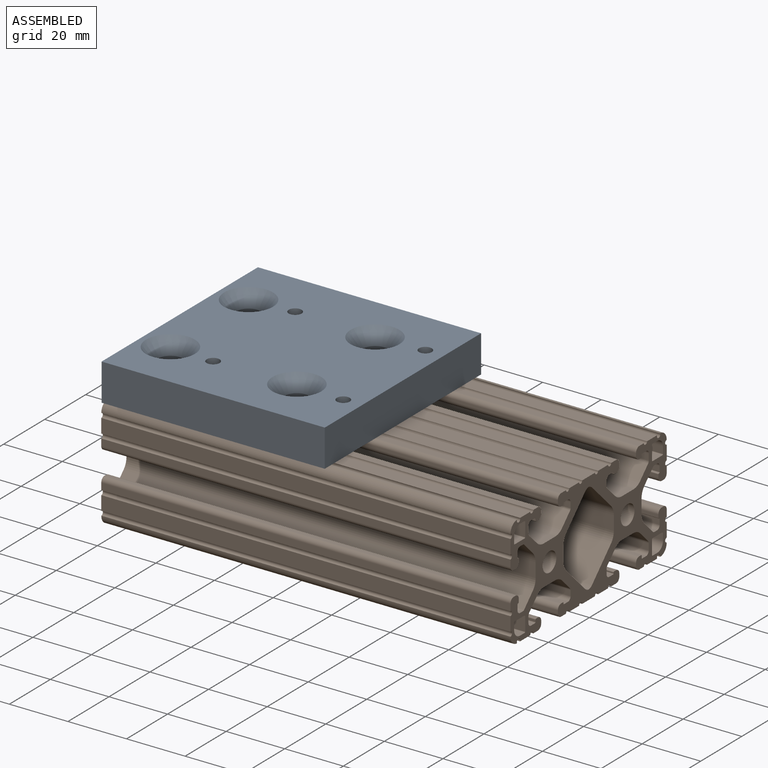
[diagram: assembled view]
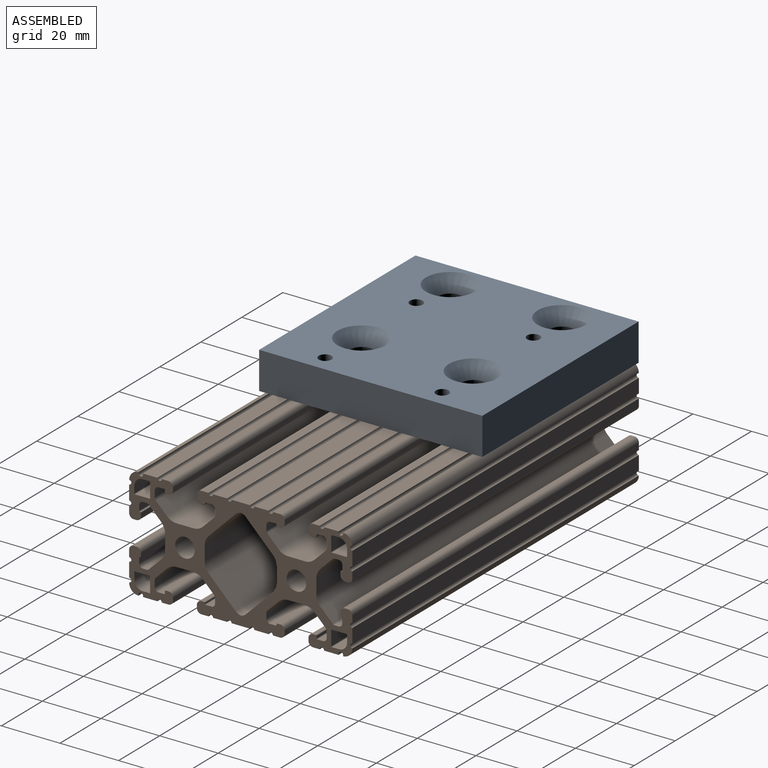
[diagram: assembled view, second angle]
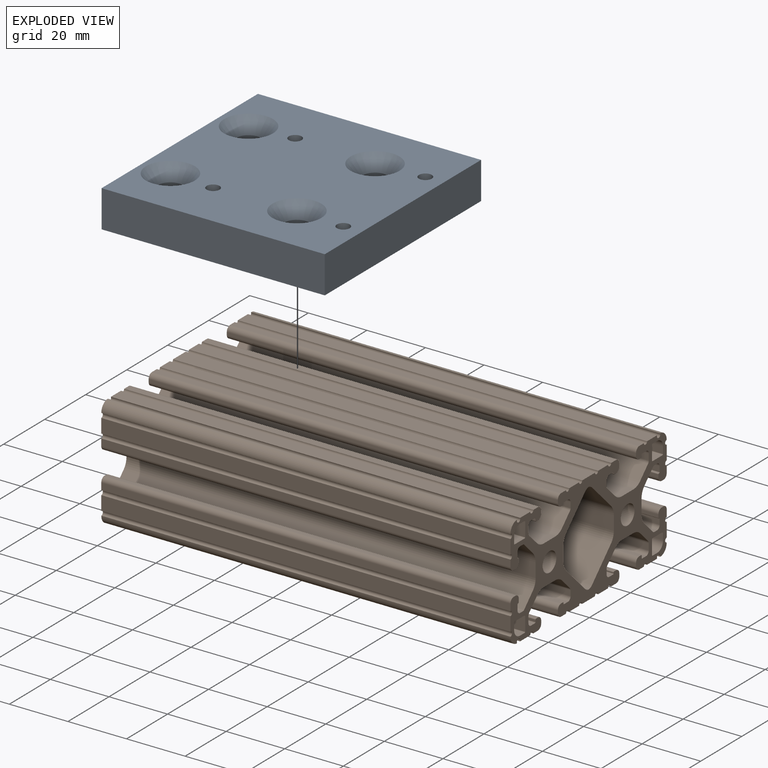
[diagram: exploded view]
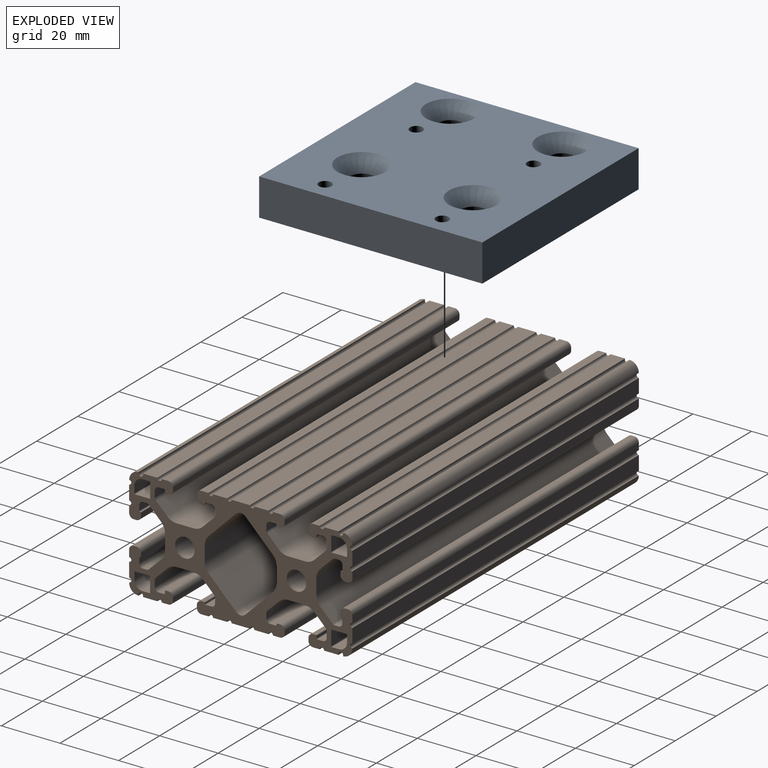
[diagram: exploded view, second angle]
ASSEMBLY  parts=2 mates=2
PART A: 26 faces, bbox 76.2x76.2x12.7 mm
  f0: plane 76.2x12.7mm, normal (1,0,0), area 967.7mm2, adj f1,f3,f4,f5
  f1: plane 76.2x12.7mm, normal (0,1,0), area 967.7mm2, adj f0,f2,f4,f5
  f2: plane 76.2x12.7mm, normal (-1,0,0), area 967.7mm2, adj f1,f3,f4,f5
  f3: plane 76.2x12.7mm, normal (0,-1,0), area 967.7mm2, adj f0,f2,f4,f5
  f4: plane 76.2x76.2mm, normal (0,0,1), area 4873.4mm2, adj f0,f1,f2,f3,f7,f9,f11,f13
  f5: plane 76.2x76.2mm, normal (0,0,-1), area 5369.2mm2, adj f0,f1,f2,f3,f6,f8,f10,f12
  f6: cylinder r=4.22mm len=8.43mm, axis (0,0,1), area 211.1mm2, adj f5,f7
  f7: cone r=4.22mm half-angle=41deg, axis (0,0,1), area 247.2mm2, adj f4,f6
  f8: cylinder r=4.22mm len=8.43mm, axis (0,0,1), area 211.1mm2, adj f5,f9
  f9: cone r=4.22mm half-angle=41deg, axis (0,0,1), area 247.2mm2, adj f4,f8
  f10: cylinder r=4.22mm len=8.43mm, axis (0,0,1), area 211.1mm2, adj f5,f11
  f11: cone r=4.22mm half-angle=41deg, axis (0,0,1), area 247.2mm2, adj f4,f10
  f12: cylinder r=4.22mm len=8.43mm, axis (0,0,1), area 211.1mm2, adj f5,f13
  f13: cone r=4.22mm half-angle=41deg, axis (0,0,1), area 247.2mm2, adj f4,f12
  f14: cylinder r=2.2mm len=6.35mm, axis (0,0,-1), area 87.8mm2, adj f4,f15
  f15: plane 8.25x8.25mm, normal (0,0,-1), area 38.3mm2, adj f14,f16
  f16: cylinder r=4.12mm len=8.25mm, axis (0,0,-1), area 164.6mm2, adj f5,f15
  f17: cylinder r=2.2mm len=6.35mm, axis (0,0,-1), area 87.8mm2, adj f4,f18
  f18: plane 8.25x8.25mm, normal (0,0,-1), area 38.3mm2, adj f17,f19
  f19: cylinder r=4.12mm len=8.25mm, axis (0,0,-1), area 164.6mm2, adj f5,f18
  f20: cylinder r=2.2mm len=6.35mm, axis (0,0,-1), area 87.8mm2, adj f4,f21
  f21: plane 8.25x8.25mm, normal (0,0,-1), area 38.3mm2, adj f20,f22
  f22: cylinder r=4.12mm len=8.25mm, axis (0,0,-1), area 164.6mm2, adj f5,f21
  f23: cylinder r=2.2mm len=6.35mm, axis (0,0,-1), area 87.8mm2, adj f4,f24
  f24: plane 8.25x8.25mm, normal (0,0,-1), area 38.3mm2, adj f23,f25
  f25: cylinder r=4.12mm len=8.25mm, axis (0,0,-1), area 164.6mm2, adj f5,f24
PART B: 266 faces, bbox 139.7x76.2x38.1 mm
  f0: cylinder r=0.76mm len=139.7mm, axis (-1,0,0), area 334.4mm2, adj f1,f263,f264,f265
  f1: plane 139.7x6.25mm, normal (0,0,1), area 872.8mm2, adj f0,f2,f264,f265
  f2: cylinder r=0.76mm len=139.7mm, axis (-1,0,0), area 334.4mm2, adj f1,f3,f264,f265
  f3: plane 139.7x4.83mm, normal (0,0,1), area 674.3mm2, adj f2,f4,f264,f265
  f4: cylinder r=0.76mm len=139.7mm, axis (-1,0,0), area 334.4mm2, adj f3,f5,f264,f265
  f5: plane 139.7x2.41mm, normal (0,0,1), area 337.1mm2, adj f4,f6,f264,f265
  f6: cylinder r=1.57mm len=139.7mm, axis (-1,0,0), area 345.6mm2, adj f5,f7,f264,f265
  f7: plane 139.7x0.91mm, normal (0,-1,0), area 127.7mm2, adj f6,f8,f264,f265
  f8: cylinder r=1.57mm len=139.7mm, axis (-1,0,0), area 345.6mm2, adj f7,f9,f264,f265
  f9: plane 139.7x0.94mm, normal (0,0,-1), area 131.4mm2, adj f8,f10,f264,f265
  f10: cylinder r=0.25mm len=139.7mm, axis (-1,0,0), area 55.7mm2, adj f9,f11,f264,f265
  f11: plane 139.7x0.26mm, normal (0,1,0), area 36.1mm2, adj f10,f12,f264,f265
  f12: cylinder r=0.25mm len=139.7mm, axis (-1,0,0), area 55.7mm2, adj f11,f13,f264,f265
  f13: plane 139.7x1.93mm, normal (0,0,-1), area 269.6mm2, adj f12,f14,f264,f265
  f14: cylinder r=1.27mm len=139.7mm, axis (-1,0,0), area 278.7mm2, adj f13,f15,f264,f265
  f15: plane 139.7x1.85mm, normal (0,-1,0), area 258.2mm2, adj f14,f16,f264,f265
  f16: cylinder r=0.89mm len=139.7mm, axis (-1,0,0), area 97.5mm2, adj f15,f17,f264,f265
  f17: plane 139.7x3.88mm, normal (0,-0.71,0.71), area 766.8mm2, adj f16,f18,f264,f265
  f18: cylinder r=4.67mm len=139.7mm, axis (-1,0,0), area 512.4mm2, adj f17,f19,f264,f265
  f19: plane 139.7x5.73mm, normal (0,0,1), area 800.9mm2, adj f18,f20,f264,f265
  f20: cylinder r=4.56mm len=139.7mm, axis (-1,0,0), area 499.9mm2, adj f19,f21,f264,f265
  f21: plane 139.7x3.8mm, normal (0,0.71,0.71), area 750.9mm2, adj f20,f22,f264,f265
  f22: cylinder r=1.28mm len=139.7mm, axis (-1,0,0), area 140.3mm2, adj f21,f23,f264,f265
  f23: plane 139.7x2.15mm, normal (0,1,0), area 300.9mm2, adj f22,f24,f264,f265
  f24: cylinder r=1.27mm len=139.7mm, axis (-1,0,0), area 278.7mm2, adj f23,f25,f264,f265
  f25: plane 139.7x1.93mm, normal (0,0,-1), area 269.6mm2, adj f24,f26,f264,f265
  f26: cylinder r=0.25mm len=139.7mm, axis (-1,0,0), area 55.7mm2, adj f25,f27,f264,f265
  f27: plane 139.7x0.73mm, normal (0,-1,0), area 101.4mm2, adj f26,f28,f264,f265
  f28: cylinder r=0.25mm len=139.7mm, axis (-1,0,0), area 55.7mm2, adj f27,f29,f264,f265
  f29: plane 139.7x0.94mm, normal (0,0,-1), area 131.4mm2, adj f28,f30,f264,f265
  f30: cylinder r=1.57mm len=139.7mm, axis (-1,0,0), area 345.6mm2, adj f29,f31,f264,f265
  f31: plane 139.7x0.89mm, normal (0,1,0), area 124.4mm2, adj f30,f32,f264,f265
  f32: cylinder r=1.6mm len=139.7mm, axis (-1,0,0), area 350.8mm2, adj f31,f33,f264,f265
  f33: plane 139.7x2.23mm, normal (0,0,1), area 312.1mm2, adj f32,f34,f264,f265
  f34: cylinder r=0.76mm len=139.7mm, axis (-1,0,0), area 334.4mm2, adj f33,f35,f264,f265
  f35: plane 139.7x4.93mm, normal (0,0,1), area 688.7mm2, adj f34,f36,f264,f265
  f36: cylinder r=0.81mm len=139.7mm, axis (-1,0,0), area 447.7mm2, adj f35,f37,f264,f265
  f37: cylinder r=3.17mm len=139.7mm, axis (-1,0,0), area 701.7mm2, adj f36,f38,f264,f265
  f38: cylinder r=0.76mm len=139.7mm, axis (-1,0,0), area 334.8mm2, adj f37,f39,f264,f265
  f39: plane 139.7x4.83mm, normal (0,-1,0), area 674.5mm2, adj f38,f40,f264,f265
  f40: cylinder r=0.76mm len=139.7mm, axis (-1,0,0), area 334.4mm2, adj f39,f41,f264,f265
  f41: plane 139.7x2.33mm, normal (0,-1,0), area 325.1mm2, adj f40,f42,f264,f265
  f42: cylinder r=1.53mm len=139.7mm, axis (-1,0,0), area 336.4mm2, adj f41,f43,f264,f265
  f43: plane 139.7x0.96mm, normal (0,0,-1), area 133.6mm2, adj f42,f44,f264,f265
  f44: cylinder r=1.57mm len=139.7mm, axis (-1,0,0), area 345.6mm2, adj f43,f45,f264,f265
  f45: plane 139.7x1.02mm, normal (0,1,0), area 142.2mm2, adj f44,f46,f264,f265
  f46: cylinder r=0.25mm len=139.7mm, axis (-1,0,0), area 55.7mm2, adj f45,f47,f264,f265
  f47: plane 139.7x0.1mm, normal (0,0,1), area 14.4mm2, adj f46,f48,f264,f265
  f48: cylinder r=0.25mm len=139.7mm, axis (-1,0,0), area 55.7mm2, adj f47,f49,f264,f265
  f49: plane 139.7x1.81mm, normal (0,1,0), area 253.5mm2, adj f48,f50,f264,f265
  f50: cylinder r=1.26mm len=139.7mm, axis (-1,0,0), area 277.4mm2, adj f49,f51,f264,f265
  f51: plane 139.7x1.35mm, normal (0,0,-1), area 188.5mm2, adj f50,f52,f264,f265
  f52: cylinder r=0.87mm len=139.7mm, axis (-1,0,0), area 95.3mm2, adj f51,f53,f264,f265
  f53: plane 139.7x4.22mm, normal (0,-0.71,-0.71), area 834mm2, adj f52,f54,f264,f265
  f54: cylinder r=4.75mm len=139.7mm, axis (-1,0,0), area 521.2mm2, adj f53,f55,f264,f265
  f55: plane 139.7x4.92mm, normal (0,-1,0), area 686.6mm2, adj f54,f56,f264,f265
  f56: cylinder r=4.75mm len=139.7mm, axis (-1,0,0), area 521.2mm2, adj f55,f57,f264,f265
  f57: plane 139.7x4.22mm, normal (0,-0.71,0.71), area 834mm2, adj f56,f58,f264,f265
  f58: cylinder r=0.87mm len=139.7mm, axis (-1,0,0), area 95.3mm2, adj f57,f59,f264,f265
  f59: plane 139.7x1.35mm, normal (0,0,1), area 188.5mm2, adj f58,f60,f264,f265
  f60: cylinder r=1.26mm len=139.7mm, axis (-1,0,0), area 277.4mm2, adj f59,f61,f264,f265
  f61: plane 139.7x1.81mm, normal (0,1,0), area 253.5mm2, adj f60,f62,f264,f265
  f62: cylinder r=0.25mm len=139.7mm, axis (-1,0,0), area 55.7mm2, adj f61,f63,f264,f265
  f63: plane 139.7x0.1mm, normal (0,0,-1), area 14.4mm2, adj f62,f64,f264,f265
  f64: cylinder r=0.25mm len=139.7mm, axis (-1,0,0), area 55.7mm2, adj f63,f65,f264,f265
  f65: plane 139.7x1.02mm, normal (0,1,0), area 142.2mm2, adj f64,f66,f264,f265
  f66: cylinder r=1.57mm len=139.7mm, axis (-1,0,0), area 345.6mm2, adj f65,f67,f264,f265
  f67: plane 139.7x0.96mm, normal (0,0,1), area 133.6mm2, adj f66,f68,f264,f265
  f68: cylinder r=1.53mm len=139.7mm, axis (-1,0,0), area 336.4mm2, adj f67,f69,f264,f265
  f69: plane 139.7x2.33mm, normal (0,-1,0), area 325.1mm2, adj f68,f70,f264,f265
  f70: cylinder r=0.76mm len=139.7mm, axis (-1,0,0), area 334.4mm2, adj f69,f71,f264,f265
  f71: plane 139.7x4.83mm, normal (0,-1,0), area 674.5mm2, adj f70,f72,f264,f265
  f72: cylinder r=0.76mm len=139.7mm, axis (-1,0,0), area 334.8mm2, adj f71,f73,f264,f265
  f73: cylinder r=3.17mm len=139.7mm, axis (-1,0,0), area 701.7mm2, adj f72,f74,f264,f265
  f74: cylinder r=0.81mm len=139.7mm, axis (-1,0,0), area 447.7mm2, adj f73,f75,f264,f265
  f75: plane 139.7x4.93mm, normal (0,0,-1), area 688.7mm2, adj f74,f76,f264,f265
  f76: cylinder r=0.76mm len=139.7mm, axis (-1,0,0), area 334.4mm2, adj f75,f77,f264,f265
  f77: plane 139.7x2.23mm, normal (0,0,-1), area 312.1mm2, adj f76,f78,f264,f265
  f78: cylinder r=1.6mm len=139.7mm, axis (-1,0,0), area 350.8mm2, adj f77,f79,f264,f265
  f79: plane 139.7x0.89mm, normal (0,1,0), area 124.4mm2, adj f78,f80,f264,f265
  f80: cylinder r=1.57mm len=139.7mm, axis (-1,0,0), area 345.6mm2, adj f79,f81,f264,f265
  f81: plane 139.7x0.94mm, normal (0,0,1), area 131.4mm2, adj f80,f82,f264,f265
  f82: cylinder r=0.25mm len=139.7mm, axis (-1,0,0), area 55.7mm2, adj f81,f83,f264,f265
  f83: plane 139.7x0.73mm, normal (0,-1,0), area 101.4mm2, adj f82,f84,f264,f265
  f84: cylinder r=0.25mm len=139.7mm, axis (-1,0,0), area 55.7mm2, adj f83,f85,f264,f265
  f85: plane 139.7x1.93mm, normal (0,0,1), area 269.6mm2, adj f84,f86,f264,f265
  f86: cylinder r=1.27mm len=139.7mm, axis (-1,0,0), area 278.7mm2, adj f85,f87,f264,f265
  f87: plane 139.7x2.15mm, normal (0,1,0), area 300.9mm2, adj f86,f88,f264,f265
  f88: cylinder r=1.28mm len=139.7mm, axis (-1,0,0), area 140.3mm2, adj f87,f89,f264,f265
  f89: plane 139.7x3.8mm, normal (0,0.71,-0.71), area 750.9mm2, adj f88,f90,f264,f265
  f90: cylinder r=4.56mm len=139.7mm, axis (-1,0,0), area 499.9mm2, adj f89,f91,f264,f265
  f91: plane 139.7x5.73mm, normal (0,0,-1), area 800.9mm2, adj f90,f92,f264,f265
  f92: cylinder r=4.67mm len=139.7mm, axis (-1,0,0), area 512.4mm2, adj f91,f93,f264,f265
  f93: plane 139.7x3.88mm, normal (0,-0.71,-0.71), area 766.8mm2, adj f92,f94,f264,f265
  f94: cylinder r=0.89mm len=139.7mm, axis (-1,0,0), area 97.5mm2, adj f93,f95,f264,f265
  f95: plane 139.7x1.85mm, normal (0,-1,0), area 258.2mm2, adj f94,f96,f264,f265
  f96: cylinder r=1.27mm len=139.7mm, axis (-1,0,0), area 278.7mm2, adj f95,f97,f264,f265
  f97: plane 139.7x1.93mm, normal (0,0,1), area 269.6mm2, adj f96,f98,f264,f265
  f98: cylinder r=0.25mm len=139.7mm, axis (-1,0,0), area 55.7mm2, adj f97,f99,f264,f265
  f99: plane 139.7x0.26mm, normal (0,1,0), area 36.1mm2, adj f98,f100,f264,f265
  f100: cylinder r=0.25mm len=139.7mm, axis (-1,0,0), area 55.7mm2, adj f99,f101,f264,f265
  f101: plane 139.7x0.94mm, normal (0,0,1), area 131.4mm2, adj f100,f102,f264,f265
  f102: cylinder r=1.57mm len=139.7mm, axis (-1,0,0), area 345.6mm2, adj f101,f103,f264,f265
  f103: plane 139.7x0.91mm, normal (0,-1,0), area 127.7mm2, adj f102,f104,f264,f265
  f104: cylinder r=1.57mm len=139.7mm, axis (-1,0,0), area 345.6mm2, adj f103,f105,f264,f265
  f105: plane 139.7x2.41mm, normal (0,0,-1), area 337.1mm2, adj f104,f106,f264,f265
  f106: cylinder r=0.76mm len=139.7mm, axis (-1,0,0), area 334.4mm2, adj f105,f107,f264,f265
  f107: plane 139.7x4.83mm, normal (0,0,-1), area 674.3mm2, adj f106,f108,f264,f265
  f108: cylinder r=0.76mm len=139.7mm, axis (-1,0,0), area 334.4mm2, adj f107,f109,f264,f265
  f109: plane 139.7x6.25mm, normal (0,0,-1), area 872.8mm2, adj f108,f110,f264,f265
  f110: cylinder r=0.76mm len=139.7mm, axis (-1,0,0), area 334.4mm2, adj f109,f111,f264,f265
  f111: plane 139.7x4.83mm, normal (0,0,-1), area 674.3mm2, adj f110,f112,f264,f265
  f112: cylinder r=0.76mm len=139.7mm, axis (-1,0,0), area 334.4mm2, adj f111,f113,f264,f265
  f113: plane 139.7x2.41mm, normal (0,0,-1), area 337.1mm2, adj f112,f114,f264,f265
  f114: cylinder r=1.57mm len=139.7mm, axis (-1,0,0), area 345.6mm2, adj f113,f115,f264,f265
  f115: plane 139.7x0.91mm, normal (0,1,0), area 127.7mm2, adj f114,f116,f264,f265
  f116: cylinder r=1.57mm len=139.7mm, axis (-1,0,0), area 345.6mm2, adj f115,f117,f264,f265
  f117: plane 139.7x0.94mm, normal (0,0,1), area 131.4mm2, adj f116,f118,f264,f265
  f118: cylinder r=0.25mm len=139.7mm, axis (-1,0,0), area 55.7mm2, adj f117,f119,f264,f265
  f119: plane 139.7x0.26mm, normal (0,-1,0), area 36.1mm2, adj f118,f120,f264,f265
  f120: cylinder r=0.25mm len=139.7mm, axis (-1,0,0), area 55.7mm2, adj f119,f121,f264,f265
  f121: plane 139.7x1.93mm, normal (0,0,1), area 269.6mm2, adj f120,f122,f264,f265
  f122: cylinder r=1.27mm len=139.7mm, axis (-1,0,0), area 278.7mm2, adj f121,f123,f264,f265
  f123: plane 139.7x1.85mm, normal (0,1,0), area 258.2mm2, adj f122,f124,f264,f265
  f124: cylinder r=0.89mm len=139.7mm, axis (-1,0,0), area 97.5mm2, adj f123,f125,f264,f265
  f125: plane 139.7x3.88mm, normal (0,0.71,-0.71), area 766.8mm2, adj f124,f126,f264,f265
  f126: cylinder r=4.67mm len=139.7mm, axis (-1,0,0), area 512.4mm2, adj f125,f127,f264,f265
  f127: plane 139.7x5.73mm, normal (0,0,-1), area 800.9mm2, adj f126,f128,f264,f265
  f128: cylinder r=4.56mm len=139.7mm, axis (-1,0,0), area 499.9mm2, adj f127,f129,f264,f265
  f129: plane 139.7x3.8mm, normal (0,-0.71,-0.71), area 750.9mm2, adj f128,f130,f264,f265
  f130: cylinder r=1.28mm len=139.7mm, axis (-1,0,0), area 140.3mm2, adj f129,f131,f264,f265
  f131: plane 139.7x2.15mm, normal (0,-1,0), area 300.9mm2, adj f130,f132,f264,f265
  f132: cylinder r=1.27mm len=139.7mm, axis (-1,0,0), area 278.7mm2, adj f131,f133,f264,f265
  f133: plane 139.7x1.93mm, normal (0,0,1), area 269.6mm2, adj f132,f134,f264,f265
  f134: cylinder r=0.25mm len=139.7mm, axis (-1,0,0), area 55.7mm2, adj f133,f135,f264,f265
  f135: plane 139.7x0.73mm, normal (0,1,0), area 101.4mm2, adj f134,f136,f264,f265
  f136: cylinder r=0.25mm len=139.7mm, axis (-1,0,0), area 55.7mm2, adj f135,f137,f264,f265
  f137: plane 139.7x0.94mm, normal (0,0,1), area 131.4mm2, adj f136,f138,f264,f265
  f138: cylinder r=1.57mm len=139.7mm, axis (-1,0,0), area 345.6mm2, adj f137,f139,f264,f265
  f139: plane 139.7x0.89mm, normal (0,-1,0), area 124.4mm2, adj f138,f140,f264,f265
  f140: cylinder r=1.6mm len=139.7mm, axis (-1,0,0), area 350.8mm2, adj f139,f141,f264,f265
  f141: plane 139.7x2.23mm, normal (0,0,-1), area 312.1mm2, adj f140,f142,f264,f265
  f142: cylinder r=0.76mm len=139.7mm, axis (-1,0,0), area 334.4mm2, adj f141,f143,f264,f265
  f143: plane 139.7x4.93mm, normal (0,0,-1), area 688.7mm2, adj f142,f144,f264,f265
  f144: cylinder r=0.81mm len=139.7mm, axis (-1,0,0), area 447.7mm2, adj f143,f145,f264,f265
  f145: cylinder r=3.17mm len=139.7mm, axis (-1,0,0), area 701.7mm2, adj f144,f146,f264,f265
  f146: cylinder r=0.76mm len=139.7mm, axis (-1,0,0), area 334.8mm2, adj f145,f147,f264,f265
  f147: plane 139.7x4.83mm, normal (0,1,0), area 674.5mm2, adj f146,f148,f264,f265
  f148: cylinder r=0.76mm len=139.7mm, axis (-1,0,0), area 334.4mm2, adj f147,f149,f264,f265
  f149: plane 139.7x2.33mm, normal (0,1,0), area 325.1mm2, adj f148,f150,f264,f265
  f150: cylinder r=1.53mm len=139.7mm, axis (-1,0,0), area 336.4mm2, adj f149,f151,f264,f265
  f151: plane 139.7x0.96mm, normal (0,0,1), area 133.6mm2, adj f150,f152,f264,f265
  f152: cylinder r=1.57mm len=139.7mm, axis (-1,0,0), area 345.6mm2, adj f151,f153,f264,f265
  f153: plane 139.7x1.02mm, normal (0,-1,0), area 142.2mm2, adj f152,f154,f264,f265
  f154: cylinder r=0.25mm len=139.7mm, axis (-1,0,0), area 55.7mm2, adj f153,f155,f264,f265
  f155: plane 139.7x0.1mm, normal (0,0,-1), area 14.4mm2, adj f154,f156,f264,f265
  f156: cylinder r=0.25mm len=139.7mm, axis (-1,0,0), area 55.7mm2, adj f155,f157,f264,f265
  f157: plane 139.7x1.81mm, normal (0,-1,0), area 253.5mm2, adj f156,f158,f264,f265
  f158: cylinder r=1.26mm len=139.7mm, axis (-1,0,0), area 277.4mm2, adj f157,f159,f264,f265
  f159: plane 139.7x1.35mm, normal (0,0,1), area 188.5mm2, adj f158,f160,f264,f265
  f160: cylinder r=0.87mm len=139.7mm, axis (-1,0,0), area 95.3mm2, adj f159,f161,f264,f265
  f161: plane 139.7x4.22mm, normal (0,0.71,0.71), area 834mm2, adj f160,f162,f264,f265
  f162: cylinder r=4.75mm len=139.7mm, axis (-1,0,0), area 521.2mm2, adj f161,f163,f264,f265
  f163: plane 139.7x4.92mm, normal (0,1,0), area 686.6mm2, adj f162,f164,f264,f265
  f164: cylinder r=4.75mm len=139.7mm, axis (-1,0,0), area 521.2mm2, adj f163,f165,f264,f265
  f165: plane 139.7x4.22mm, normal (0,0.71,-0.71), area 834mm2, adj f164,f166,f264,f265
  f166: cylinder r=0.87mm len=139.7mm, axis (-1,0,0), area 95.3mm2, adj f165,f167,f264,f265
  f167: plane 139.7x1.35mm, normal (0,0,-1), area 188.5mm2, adj f166,f168,f264,f265
  f168: cylinder r=1.26mm len=139.7mm, axis (-1,0,0), area 277.4mm2, adj f167,f169,f264,f265
  f169: plane 139.7x1.81mm, normal (0,-1,0), area 253.5mm2, adj f168,f170,f264,f265
  f170: cylinder r=0.25mm len=139.7mm, axis (-1,0,0), area 55.7mm2, adj f169,f171,f264,f265
  f171: plane 139.7x0.1mm, normal (0,0,1), area 14.4mm2, adj f170,f172,f264,f265
  f172: cylinder r=0.25mm len=139.7mm, axis (-1,0,0), area 55.7mm2, adj f171,f173,f264,f265
  f173: plane 139.7x1.02mm, normal (0,-1,0), area 142.2mm2, adj f172,f174,f264,f265
  f174: cylinder r=1.57mm len=139.7mm, axis (-1,0,0), area 345.6mm2, adj f173,f175,f264,f265
  f175: plane 139.7x0.96mm, normal (0,0,-1), area 133.6mm2, adj f174,f176,f264,f265
  f176: cylinder r=1.53mm len=139.7mm, axis (-1,0,0), area 336.4mm2, adj f175,f177,f264,f265
  f177: plane 139.7x2.33mm, normal (0,1,0), area 325.1mm2, adj f176,f178,f264,f265
  f178: cylinder r=0.76mm len=139.7mm, axis (-1,0,0), area 334.4mm2, adj f177,f179,f264,f265
  f179: plane 139.7x4.83mm, normal (0,1,0), area 674.5mm2, adj f178,f180,f264,f265
  f180: cylinder r=0.76mm len=139.7mm, axis (-1,0,0), area 334.8mm2, adj f179,f181,f264,f265
  f181: cylinder r=3.17mm len=139.7mm, axis (-1,0,0), area 701.7mm2, adj f180,f182,f264,f265
  f182: cylinder r=0.81mm len=139.7mm, axis (-1,0,0), area 447.7mm2, adj f181,f183,f264,f265
  f183: plane 139.7x4.93mm, normal (0,0,1), area 688.7mm2, adj f182,f184,f264,f265
  f184: cylinder r=0.76mm len=139.7mm, axis (-1,0,0), area 334.4mm2, adj f183,f185,f264,f265
  f185: plane 139.7x2.23mm, normal (0,0,1), area 312.1mm2, adj f184,f186,f264,f265
  f186: cylinder r=1.6mm len=139.7mm, axis (-1,0,0), area 350.8mm2, adj f185,f187,f264,f265
  f187: plane 139.7x0.89mm, normal (0,-1,0), area 124.4mm2, adj f186,f188,f264,f265
  f188: cylinder r=1.57mm len=139.7mm, axis (-1,0,0), area 345.6mm2, adj f187,f189,f264,f265
  f189: plane 139.7x0.94mm, normal (0,0,-1), area 131.4mm2, adj f188,f190,f264,f265
  f190: cylinder r=0.25mm len=139.7mm, axis (-1,0,0), area 55.7mm2, adj f189,f191,f264,f265
  f191: plane 139.7x0.73mm, normal (0,1,0), area 101.4mm2, adj f190,f192,f264,f265
  f192: cylinder r=0.25mm len=139.7mm, axis (-1,0,0), area 55.7mm2, adj f191,f193,f264,f265
  f193: plane 139.7x1.93mm, normal (0,0,-1), area 269.6mm2, adj f192,f194,f264,f265
  f194: cylinder r=1.27mm len=139.7mm, axis (-1,0,0), area 278.7mm2, adj f193,f195,f264,f265
  f195: plane 139.7x2.15mm, normal (0,-1,0), area 300.9mm2, adj f194,f196,f264,f265
  f196: cylinder r=1.28mm len=139.7mm, axis (-1,0,0), area 140.3mm2, adj f195,f197,f264,f265
  f197: plane 139.7x3.8mm, normal (0,-0.71,0.71), area 750.9mm2, adj f196,f198,f264,f265
  f198: cylinder r=4.56mm len=139.7mm, axis (-1,0,0), area 499.9mm2, adj f197,f199,f264,f265
  f199: plane 139.7x5.73mm, normal (0,0,1), area 800.9mm2, adj f198,f200,f264,f265
  f200: cylinder r=4.67mm len=139.7mm, axis (-1,0,0), area 512.4mm2, adj f199,f201,f264,f265
  f201: plane 139.7x3.88mm, normal (0,0.71,0.71), area 766.8mm2, adj f200,f202,f264,f265
  f202: cylinder r=0.89mm len=139.7mm, axis (-1,0,0), area 97.5mm2, adj f201,f203,f264,f265
  f203: plane 139.7x1.85mm, normal (0,1,0), area 258.2mm2, adj f202,f204,f264,f265
  f204: cylinder r=1.27mm len=139.7mm, axis (-1,0,0), area 278.7mm2, adj f203,f205,f264,f265
  f205: plane 139.7x1.93mm, normal (0,0,-1), area 269.6mm2, adj f204,f206,f264,f265
  f206: cylinder r=0.25mm len=139.7mm, axis (-1,0,0), area 55.7mm2, adj f205,f207,f264,f265
  f207: plane 139.7x0.26mm, normal (0,-1,0), area 36.1mm2, adj f206,f208,f264,f265
  f208: cylinder r=0.25mm len=139.7mm, axis (-1,0,0), area 55.7mm2, adj f207,f209,f264,f265
  f209: plane 139.7x0.94mm, normal (0,0,-1), area 131.4mm2, adj f208,f210,f264,f265
  f210: cylinder r=1.57mm len=139.7mm, axis (-1,0,0), area 345.6mm2, adj f209,f211,f264,f265
  f211: plane 139.7x0.91mm, normal (0,1,0), area 127.7mm2, adj f210,f212,f264,f265
  f212: cylinder r=1.57mm len=139.7mm, axis (-1,0,0), area 345.6mm2, adj f211,f213,f264,f265
  f213: plane 139.7x2.41mm, normal (0,0,1), area 337.1mm2, adj f212,f214,f264,f265
  f214: cylinder r=0.76mm len=139.7mm, axis (-1,0,0), area 334.4mm2, adj f213,f263,f264,f265
  f215: plane 139.7x2.34mm, normal (0,0,-1), area 326.5mm2, adj f216,f256,f264,f265
  f216: cylinder r=0.25mm len=139.7mm, axis (-1,0,0), area 55.7mm2, adj f215,f217,f264,f265
  f217: plane 139.7x4.88mm, normal (0,-1,0), area 681.3mm2, adj f216,f218,f264,f265
  f218: cylinder r=0.25mm len=139.7mm, axis (-1,0,0), area 55.7mm2, adj f217,f219,f264,f265
  f219: plane 139.7x4.88mm, normal (0,0,1), area 681.3mm2, adj f218,f220,f264,f265
  f220: cylinder r=0.25mm len=139.7mm, axis (-1,0,0), area 55.7mm2, adj f219,f221,f264,f265
  f221: plane 139.7x2.34mm, normal (0,1,0), area 326.5mm2, adj f220,f256,f264,f265
  f222: cylinder r=0.25mm len=139.7mm, axis (-1,0,0), area 55.7mm2, adj f223,f257,f264,f265
  f223: plane 139.7x4.88mm, normal (0,-1,0), area 681.3mm2, adj f222,f224,f264,f265
  f224: cylinder r=0.25mm len=139.7mm, axis (-1,0,0), area 55.7mm2, adj f223,f225,f264,f265
  f225: plane 139.7x2.34mm, normal (0,0,1), area 326.5mm2, adj f224,f226,f264,f265
  f226: cylinder r=2.79mm len=139.7mm, axis (-1,0,0), area 613.1mm2, adj f225,f227,f264,f265
  f227: plane 139.7x2.34mm, normal (0,1,0), area 326.5mm2, adj f226,f228,f264,f265
  f228: cylinder r=0.25mm len=139.7mm, axis (-1,0,0), area 55.7mm2, adj f227,f257,f264,f265
  f229: plane 139.7x9.12mm, normal (0,-0.71,0.71), area 1802mm2, adj f230,f258,f264,f265
  f230: cylinder r=3.22mm len=139.7mm, axis (-1,0,0), area 283.8mm2, adj f229,f231,f264,f265
  f231: cylinder r=3.22mm len=139.7mm, axis (-1,0,0), area 283.8mm2, adj f230,f232,f264,f265
  f232: plane 139.7x9.12mm, normal (0,0.71,0.71), area 1802mm2, adj f231,f233,f264,f265
  f233: cylinder r=4.75mm len=139.7mm, axis (-1,0,0), area 521.2mm2, adj f232,f234,f264,f265
  f234: plane 139.7x4.92mm, normal (0,1,0), area 686.6mm2, adj f233,f235,f264,f265
  f235: cylinder r=4.75mm len=139.7mm, axis (-1,0,0), area 521.2mm2, adj f234,f236,f264,f265
  f236: plane 139.7x9.12mm, normal (0,0.71,-0.71), area 1802mm2, adj f235,f237,f264,f265
  f237: cylinder r=3.22mm len=139.7mm, axis (-1,0,0), area 283.8mm2, adj f236,f238,f264,f265
  f238: cylinder r=3.22mm len=139.7mm, axis (-1,0,0), area 283.8mm2, adj f237,f239,f264,f265
  f239: plane 139.7x9.12mm, normal (0,-0.71,-0.71), area 1802mm2, adj f238,f240,f264,f265
  f240: cylinder r=4.75mm len=139.7mm, axis (-1,0,0), area 521.2mm2, adj f239,f241,f264,f265
  f241: plane 139.7x4.92mm, normal (0,-1,0), area 686.6mm2, adj f240,f258,f264,f265
  f242: cylinder r=2.79mm len=139.7mm, axis (-1,0,0), area 613.1mm2, adj f243,f259,f264,f265
  f243: plane 139.7x2.34mm, normal (0,0,1), area 326.5mm2, adj f242,f244,f264,f265
  f244: cylinder r=0.25mm len=139.7mm, axis (-1,0,0), area 55.7mm2, adj f243,f245,f264,f265
  f245: plane 139.7x4.88mm, normal (0,1,0), area 681.3mm2, adj f244,f246,f264,f265
  f246: cylinder r=0.25mm len=139.7mm, axis (-1,0,0), area 55.7mm2, adj f245,f247,f264,f265
  f247: plane 139.7x4.88mm, normal (0,0,-1), area 681.3mm2, adj f246,f248,f264,f265
  f248: cylinder r=0.25mm len=139.7mm, axis (-1,0,0), area 55.7mm2, adj f247,f259,f264,f265
  f249: cylinder r=0.25mm len=139.7mm, axis (-1,0,0), area 55.7mm2, adj f250,f260,f264,f265
  f250: plane 139.7x4.88mm, normal (0,1,0), area 681.3mm2, adj f249,f251,f264,f265
  f251: cylinder r=0.25mm len=139.7mm, axis (-1,0,0), area 55.7mm2, adj f250,f252,f264,f265
  f252: plane 139.7x2.34mm, normal (0,0,-1), area 326.5mm2, adj f251,f253,f264,f265
  f253: cylinder r=2.79mm len=139.7mm, axis (-1,0,0), area 613.1mm2, adj f252,f254,f264,f265
  f254: plane 139.7x2.34mm, normal (0,-1,0), area 326.5mm2, adj f253,f255,f264,f265
  f255: cylinder r=0.25mm len=139.7mm, axis (-1,0,0), area 55.7mm2, adj f254,f260,f264,f265
  f256: cylinder r=2.79mm len=139.7mm, axis (-1,0,0), area 613.1mm2, adj f215,f221,f264,f265
  f257: plane 139.7x4.88mm, normal (0,0,-1), area 681.3mm2, adj f222,f228,f264,f265
  f258: cylinder r=4.75mm len=139.7mm, axis (-1,0,0), area 521.2mm2, adj f229,f241,f264,f265
  f259: plane 139.7x2.34mm, normal (0,-1,0), area 326.5mm2, adj f242,f248,f264,f265
  f260: plane 139.7x4.88mm, normal (0,0,1), area 681.3mm2, adj f249,f255,f264,f265
  f261: cylinder r=3.33mm len=139.7mm, axis (-1,0,0), area 2920.7mm2, adj f264,f265
  f262: cylinder r=3.33mm len=139.7mm, axis (-1,0,0), area 2920.7mm2, adj f264,f265
  f263: plane 139.7x4.83mm, normal (0,0,1), area 674.3mm2, adj f0,f214,f264,f265
  f264: plane 76.2x38.1mm, normal (1,0,0), area 1112.2mm2, adj f0,f1,f2,f3,f4,f5,f6,f7
  f265: plane 76.2x38.1mm, normal (-1,0,0), area 1112.2mm2, adj f0,f1,f2,f3,f4,f5,f6,f7
PLACE A t=(65.05,-109.73,77.05)mm
PLACE B t=(96.68,-109.98,51.65)mm
MATE planar A.f5 <-> B.f1  axis (0,0,-1) through (65.05,-147.83,70.7)mm
MATE slider A.f5 <-> B.f1  axis (0,0,-1) through (64.93,-109.73,70.7)mm
